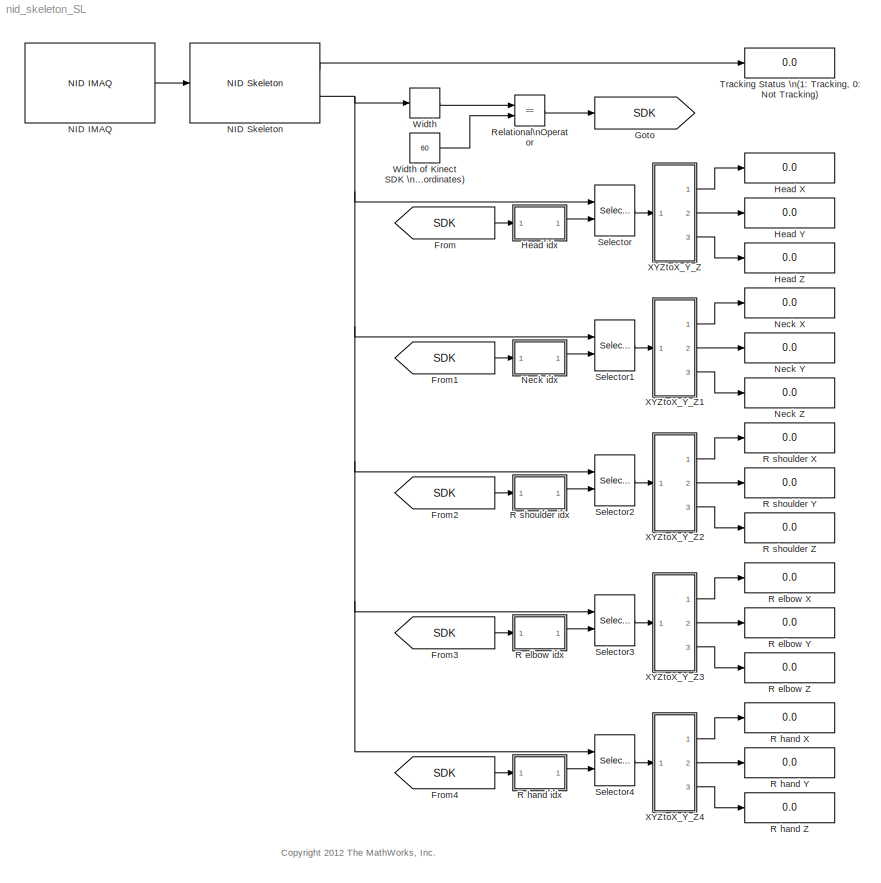
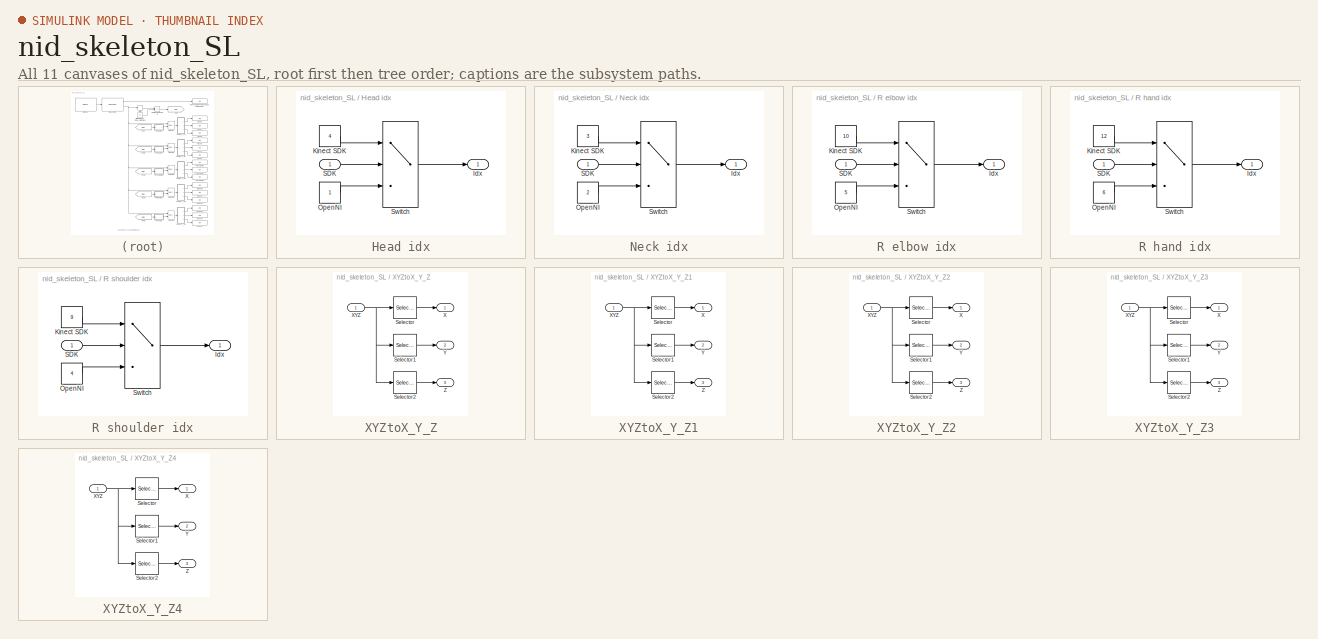
[diagram: thumbnail index - all 11 canvases of the model, root first then tree order]
MODEL nid_skeleton_SL
KIND model
BLOCK [From] From
  GotoTag = SDK
  SID = 130
BLOCK [From] From1
  GotoTag = SDK
  SID = 136
BLOCK [From] From2
  GotoTag = SDK
  SID = 146
BLOCK [From] From3
  GotoTag = SDK
  SID = 156
BLOCK [From] From4
  GotoTag = SDK
  SID = 166
BLOCK [Goto] Goto
  GotoTag = SDK
  SID = 120
BLOCK [Display] Head X
  Decimation = 1
  Ports = [1]
  SID = 133
BLOCK [Display] Head Y
  Decimation = 1
  Ports = [1]
  SID = 195
BLOCK [Display] Head Z
  Decimation = 1
  Ports = [1]
  SID = 196
BLOCK [SubSystem] Head idx
  Ports = [1, 1]
  RequestExecContextInheritance = off
  SID = 126
BLOCK [Outport] Head idx/Idx
  IconDisplay = Port number
  SID = 128
BLOCK [Constant] Head idx/Kinect SDK
  SID = 122
  Value = 4
BLOCK [Constant] Head idx/OpenNI
  SID = 123
BLOCK [Inport] Head idx/SDK
  IconDisplay = Port number
  SID = 127
BLOCK [Switch] Head idx/Switch
  Criteria = u2 ~= 0
  InputSameDT = off
  SID = 121
  SaturateOnIntegerOverflow = off
BLOCK [Reference] NID IMAQ  REF=nid_lib/NID IMAQ
  Ports = [0, 1]
  SID = 84
  SourceBlock = nid_lib/NID IMAQ
  SourceType = NID IMAQ
  angle = 0
  angle_read = off
  imaq_depth = off
  imaq_image = off
  imaq_ir = off
  imaq_motion = off
  imaq_sample_time = 1/30
  imaq_skeleton = on
  mirror_image = off
  near_mode = off
  needPsiPose = off
  res_fps = VGA (640x480): 30 FPS
  view_point = off
BLOCK [Reference] NID Skeleton  REF=nid_lib/NID Skeleton
  Ports = [1, 2]
  SID = 85
  SourceBlock = nid_lib/NID Skeleton
  SourceType = NID Skeleton
  conv_XYZ_RW = on
  num_of_skeleton_tracking = 1
  viewer = off
BLOCK [Display] Neck X
  Decimation = 1
  Ports = [1]
  SID = 197
BLOCK [Display] Neck Y
  Decimation = 1
  Ports = [1]
  SID = 198
BLOCK [Display] Neck Z
  Decimation = 1
  Ports = [1]
  SID = 199
BLOCK [SubSystem] Neck idx
  Ports = [1, 1]
  RequestExecContextInheritance = off
  SID = 137
BLOCK [Outport] Neck idx/Idx
  IconDisplay = Port number
  SID = 142
BLOCK [Constant] Neck idx/Kinect SDK
  SID = 139
  Value = 3
BLOCK [Constant] Neck idx/OpenNI
  SID = 140
  Value = 2
BLOCK [Inport] Neck idx/SDK
  IconDisplay = Port number
  SID = 138
BLOCK [Switch] Neck idx/Switch
  Criteria = u2 ~= 0
  InputSameDT = off
  SID = 141
  SaturateOnIntegerOverflow = off
BLOCK [Display] R elbow X
  Decimation = 1
  Ports = [1]
  SID = 221
BLOCK [Display] R elbow Y
  Decimation = 1
  Ports = [1]
  SID = 219
BLOCK [Display] R elbow Z
  Decimation = 1
  Ports = [1]
  SID = 220
BLOCK [SubSystem] R elbow idx
  Ports = [1, 1]
  RequestExecContextInheritance = off
  SID = 157
BLOCK [Outport] R elbow idx/Idx
  IconDisplay = Port number
  SID = 162
BLOCK [Constant] R elbow idx/Kinect SDK
  SID = 159
  Value = 10
BLOCK [Constant] R elbow idx/OpenNI
  SID = 160
  Value = 5
BLOCK [Inport] R elbow idx/SDK
  IconDisplay = Port number
  SID = 158
BLOCK [Switch] R elbow idx/Switch
  Criteria = u2 ~= 0
  InputSameDT = off
  SID = 161
  SaturateOnIntegerOverflow = off
BLOCK [Display] R hand X
  Decimation = 1
  Ports = [1]
  SID = 230
BLOCK [Display] R hand Y
  Decimation = 1
  Ports = [1]
  SID = 231
BLOCK [Display] R hand Z
  Decimation = 1
  Ports = [1]
  SID = 232
BLOCK [SubSystem] R hand idx
  Ports = [1, 1]
  RequestExecContextInheritance = off
  SID = 167
BLOCK [Outport] R hand idx/Idx
  IconDisplay = Port number
  SID = 172
BLOCK [Constant] R hand idx/Kinect SDK
  SID = 169
  Value = 12
BLOCK [Constant] R hand idx/OpenNI
  SID = 170
  Value = 6
BLOCK [Inport] R hand idx/SDK
  IconDisplay = Port number
  SID = 168
BLOCK [Switch] R hand idx/Switch
  Criteria = u2 ~= 0
  InputSameDT = off
  SID = 171
  SaturateOnIntegerOverflow = off
BLOCK [Display] R shoulder X
  Decimation = 1
  Ports = [1]
  SID = 208
BLOCK [Display] R shoulder Y
  Decimation = 1
  Ports = [1]
  SID = 209
BLOCK [Display] R shoulder Z
  Decimation = 1
  Ports = [1]
  SID = 210
BLOCK [SubSystem] R shoulder idx
  Ports = [1, 1]
  RequestExecContextInheritance = off
  SID = 147
BLOCK [Outport] R shoulder idx/Idx
  IconDisplay = Port number
  SID = 152
BLOCK [Constant] R shoulder idx/Kinect SDK
  SID = 149
  Value = 9
BLOCK [Constant] R shoulder idx/OpenNI
  SID = 150
  Value = 4
BLOCK [Inport] R shoulder idx/SDK
  IconDisplay = Port number
  SID = 148
BLOCK [Switch] R shoulder idx/Switch
  Criteria = u2 ~= 0
  InputSameDT = off
  SID = 151
  SaturateOnIntegerOverflow = off
BLOCK [RelationalOperator] Relational\nOperator
  InputSameDT = off
  Operator = ==
  OutDataTypeStr = boolean
  Ports = [2, 1]
  SID = 119
BLOCK [Selector] Selector
  IndexOptions = Select all,Index vector (port),Select all
  Indices = [1 3],1,1
  InputPortWidth = 3
  NumberOfDimensions = 3
  OutputSizes = 1,1,1
  Ports = [2, 1]
  SID = 129
BLOCK [Selector] Selector1
  IndexOptions = Select all,Index vector (port),Select all
  Indices = [1 3],1,1
  InputPortWidth = 3
  NumberOfDimensions = 3
  OutputSizes = 1,1,1
  Ports = [2, 1]
  SID = 144
BLOCK [Selector] Selector2
  IndexOptions = Select all,Index vector (port),Select all
  Indices = [1 3],1,1
  InputPortWidth = 3
  NumberOfDimensions = 3
  OutputSizes = 1,1,1
  Ports = [2, 1]
  SID = 154
BLOCK [Selector] Selector3
  IndexOptions = Select all,Index vector (port),Select all
  Indices = [1 3],1,1
  InputPortWidth = 3
  NumberOfDimensions = 3
  OutputSizes = 1,1,1
  Ports = [2, 1]
  SID = 164
BLOCK [Selector] Selector4
  IndexOptions = Select all,Index vector (port),Select all
  Indices = [1 3],1,1
  InputPortWidth = 3
  NumberOfDimensions = 3
  OutputSizes = 1,1,1
  Ports = [2, 1]
  SID = 174
BLOCK [Display] Tracking Status \n(1: Tracking, 0: Not Tracking)
  Decimation = 1
  Ports = [1]
  SID = 134
BLOCK [Width] Width
  SID = 117
BLOCK [Constant] Width of Kinect SDK \n(20 joints x 3 coordinates)
  SID = 118
  Value = 60
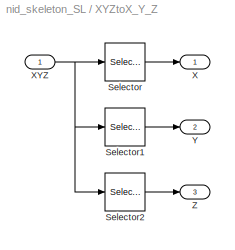
BLOCK [SubSystem] XYZtoX_Y_Z
  Ports = [1, 3]
  RequestExecContextInheritance = off
  SID = 187
BLOCK [Selector] XYZtoX_Y_Z/Selector
  IndexOptions = Index vector (dialog),Index vector (dialog),Index vector (dialog)
  Indices = 1,1,1
  InputPortWidth = 3
  NumberOfDimensions = 3
  OutputSizes = 1,1,1
  Ports = [1, 1]
  SID = 186
BLOCK [Selector] XYZtoX_Y_Z/Selector1
  IndexOptions = Index vector (dialog),Index vector (dialog),Index vector (dialog)
  Indices = 1,1,2
  InputPortWidth = 3
  NumberOfDimensions = 3
  OutputSizes = 1,1,1
  Ports = [1, 1]
  SID = 191
BLOCK [Selector] XYZtoX_Y_Z/Selector2
  IndexOptions = Index vector (dialog),Index vector (dialog),Index vector (dialog)
  Indices = 1,1,3
  InputPortWidth = 3
  NumberOfDimensions = 3
  OutputSizes = 1,1,1
  Ports = [1, 1]
  SID = 193
BLOCK [Outport] XYZtoX_Y_Z/X
  IconDisplay = Port number
  SID = 189
BLOCK [Inport] XYZtoX_Y_Z/XYZ
  IconDisplay = Port number
  SID = 188
BLOCK [Outport] XYZtoX_Y_Z/Y
  IconDisplay = Port number
  Port = 2
  SID = 192
BLOCK [Outport] XYZtoX_Y_Z/Z
  IconDisplay = Port number
  Port = 3
  SID = 194
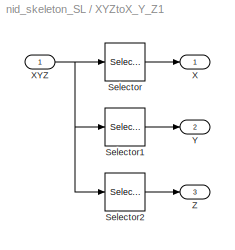
BLOCK [SubSystem] XYZtoX_Y_Z1
  Ports = [1, 3]
  RequestExecContextInheritance = off
  SID = 200
BLOCK [Selector] XYZtoX_Y_Z1/Selector
  IndexOptions = Index vector (dialog),Index vector (dialog),Index vector (dialog)
  Indices = 1,1,1
  InputPortWidth = 3
  NumberOfDimensions = 3
  OutputSizes = 1,1,1
  Ports = [1, 1]
  SID = 202
BLOCK [Selector] XYZtoX_Y_Z1/Selector1
  IndexOptions = Index vector (dialog),Index vector (dialog),Index vector (dialog)
  Indices = 1,1,2
  InputPortWidth = 3
  NumberOfDimensions = 3
  OutputSizes = 1,1,1
  Ports = [1, 1]
  SID = 203
BLOCK [Selector] XYZtoX_Y_Z1/Selector2
  IndexOptions = Index vector (dialog),Index vector (dialog),Index vector (dialog)
  Indices = 1,1,3
  InputPortWidth = 3
  NumberOfDimensions = 3
  OutputSizes = 1,1,1
  Ports = [1, 1]
  SID = 204
BLOCK [Outport] XYZtoX_Y_Z1/X
  IconDisplay = Port number
  SID = 205
BLOCK [Inport] XYZtoX_Y_Z1/XYZ
  IconDisplay = Port number
  SID = 201
BLOCK [Outport] XYZtoX_Y_Z1/Y
  IconDisplay = Port number
  Port = 2
  SID = 206
BLOCK [Outport] XYZtoX_Y_Z1/Z
  IconDisplay = Port number
  Port = 3
  SID = 207
BLOCK [SubSystem] XYZtoX_Y_Z2
  Ports = [1, 3]
  RequestExecContextInheritance = off
  SID = 211
BLOCK [Selector] XYZtoX_Y_Z2/Selector
  IndexOptions = Index vector (dialog),Index vector (dialog),Index vector (dialog)
  Indices = 1,1,1
  InputPortWidth = 3
  NumberOfDimensions = 3
  OutputSizes = 1,1,1
  Ports = [1, 1]
  SID = 213
BLOCK [Selector] XYZtoX_Y_Z2/Selector1
  IndexOptions = Index vector (dialog),Index vector (dialog),Index vector (dialog)
  Indices = 1,1,2
  InputPortWidth = 3
  NumberOfDimensions = 3
  OutputSizes = 1,1,1
  Ports = [1, 1]
  SID = 214
BLOCK [Selector] XYZtoX_Y_Z2/Selector2
  IndexOptions = Index vector (dialog),Index vector (dialog),Index vector (dialog)
  Indices = 1,1,3
  InputPortWidth = 3
  NumberOfDimensions = 3
  OutputSizes = 1,1,1
  Ports = [1, 1]
  SID = 215
BLOCK [Outport] XYZtoX_Y_Z2/X
  IconDisplay = Port number
  SID = 216
BLOCK [Inport] XYZtoX_Y_Z2/XYZ
  IconDisplay = Port number
  SID = 212
BLOCK [Outport] XYZtoX_Y_Z2/Y
  IconDisplay = Port number
  Port = 2
  SID = 217
BLOCK [Outport] XYZtoX_Y_Z2/Z
  IconDisplay = Port number
  Port = 3
  SID = 218
BLOCK [SubSystem] XYZtoX_Y_Z3
  Ports = [1, 3]
  RequestExecContextInheritance = off
  SID = 222
BLOCK [Selector] XYZtoX_Y_Z3/Selector
  IndexOptions = Index vector (dialog),Index vector (dialog),Index vector (dialog)
  Indices = 1,1,1
  InputPortWidth = 3
  NumberOfDimensions = 3
  OutputSizes = 1,1,1
  Ports = [1, 1]
  SID = 224
BLOCK [Selector] XYZtoX_Y_Z3/Selector1
  IndexOptions = Index vector (dialog),Index vector (dialog),Index vector (dialog)
  Indices = 1,1,2
  InputPortWidth = 3
  NumberOfDimensions = 3
  OutputSizes = 1,1,1
  Ports = [1, 1]
  SID = 225
BLOCK [Selector] XYZtoX_Y_Z3/Selector2
  IndexOptions = Index vector (dialog),Index vector (dialog),Index vector (dialog)
  Indices = 1,1,3
  InputPortWidth = 3
  NumberOfDimensions = 3
  OutputSizes = 1,1,1
  Ports = [1, 1]
  SID = 226
BLOCK [Outport] XYZtoX_Y_Z3/X
  IconDisplay = Port number
  SID = 227
BLOCK [Inport] XYZtoX_Y_Z3/XYZ
  IconDisplay = Port number
  SID = 223
BLOCK [Outport] XYZtoX_Y_Z3/Y
  IconDisplay = Port number
  Port = 2
  SID = 228
BLOCK [Outport] XYZtoX_Y_Z3/Z
  IconDisplay = Port number
  Port = 3
  SID = 229
BLOCK [SubSystem] XYZtoX_Y_Z4
  Ports = [1, 3]
  RequestExecContextInheritance = off
  SID = 233
BLOCK [Selector] XYZtoX_Y_Z4/Selector
  IndexOptions = Index vector (dialog),Index vector (dialog),Index vector (dialog)
  Indices = 1,1,1
  InputPortWidth = 3
  NumberOfDimensions = 3
  OutputSizes = 1,1,1
  Ports = [1, 1]
  SID = 235
BLOCK [Selector] XYZtoX_Y_Z4/Selector1
  IndexOptions = Index vector (dialog),Index vector (dialog),Index vector (dialog)
  Indices = 1,1,2
  InputPortWidth = 3
  NumberOfDimensions = 3
  OutputSizes = 1,1,1
  Ports = [1, 1]
  SID = 236
BLOCK [Selector] XYZtoX_Y_Z4/Selector2
  IndexOptions = Index vector (dialog),Index vector (dialog),Index vector (dialog)
  Indices = 1,1,3
  InputPortWidth = 3
  NumberOfDimensions = 3
  OutputSizes = 1,1,1
  Ports = [1, 1]
  SID = 237
BLOCK [Outport] XYZtoX_Y_Z4/X
  IconDisplay = Port number
  SID = 238
BLOCK [Inport] XYZtoX_Y_Z4/XYZ
  IconDisplay = Port number
  SID = 234
BLOCK [Outport] XYZtoX_Y_Z4/Y
  IconDisplay = Port number
  Port = 2
  SID = 239
BLOCK [Outport] XYZtoX_Y_Z4/Z
  IconDisplay = Port number
  Port = 3
  SID = 240
ANNOTATION (root): <copyright redacted>
LINE From1:1 -> Neck idx:1
LINE From2:1 -> R shoulder idx:1
LINE From3:1 -> R elbow idx:1
LINE From4:1 -> R hand idx:1
LINE From:1 -> Head idx:1
LINE Head idx/Kinect SDK:1 -> Head idx/Switch:1
LINE Head idx/OpenNI:1 -> Head idx/Switch:3
LINE Head idx/SDK:1 -> Head idx/Switch:2
LINE Head idx/Switch:1 -> Head idx/Idx:1
LINE Head idx:1 -> Selector:2
LINE NID IMAQ:1 -> NID Skeleton:1
LINE NID Skeleton:1 -> Tracking Status \n(1: Tracking, 0: Not Tracking):1
NET NID Skeleton:2 -> Selector1:1, Selector2:1, Selector3:1, Selector4:1, Selector:1, Width:1
LINE Neck idx/Kinect SDK:1 -> Neck idx/Switch:1
LINE Neck idx/OpenNI:1 -> Neck idx/Switch:3
LINE Neck idx/SDK:1 -> Neck idx/Switch:2
LINE Neck idx/Switch:1 -> Neck idx/Idx:1
LINE Neck idx:1 -> Selector1:2
LINE R elbow idx/Kinect SDK:1 -> R elbow idx/Switch:1
LINE R elbow idx/OpenNI:1 -> R elbow idx/Switch:3
LINE R elbow idx/SDK:1 -> R elbow idx/Switch:2
LINE R elbow idx/Switch:1 -> R elbow idx/Idx:1
LINE R elbow idx:1 -> Selector3:2
LINE R hand idx/Kinect SDK:1 -> R hand idx/Switch:1
LINE R hand idx/OpenNI:1 -> R hand idx/Switch:3
LINE R hand idx/SDK:1 -> R hand idx/Switch:2
LINE R hand idx/Switch:1 -> R hand idx/Idx:1
LINE R hand idx:1 -> Selector4:2
LINE R shoulder idx/Kinect SDK:1 -> R shoulder idx/Switch:1
LINE R shoulder idx/OpenNI:1 -> R shoulder idx/Switch:3
LINE R shoulder idx/SDK:1 -> R shoulder idx/Switch:2
LINE R shoulder idx/Switch:1 -> R shoulder idx/Idx:1
LINE R shoulder idx:1 -> Selector2:2
LINE Relational\nOperator:1 -> Goto:1
LINE Selector1:1 -> XYZtoX_Y_Z1:1
LINE Selector2:1 -> XYZtoX_Y_Z2:1
LINE Selector3:1 -> XYZtoX_Y_Z3:1
LINE Selector4:1 -> XYZtoX_Y_Z4:1
LINE Selector:1 -> XYZtoX_Y_Z:1
LINE Width of Kinect SDK \n(20 joints x 3 coordinates):1 -> Relational\nOperator:2
LINE Width:1 -> Relational\nOperator:1
LINE XYZtoX_Y_Z/Selector1:1 -> XYZtoX_Y_Z/Y:1
LINE XYZtoX_Y_Z/Selector2:1 -> XYZtoX_Y_Z/Z:1
LINE XYZtoX_Y_Z/Selector:1 -> XYZtoX_Y_Z/X:1
NET XYZtoX_Y_Z/XYZ:1 -> XYZtoX_Y_Z/Selector1:1, XYZtoX_Y_Z/Selector2:1, XYZtoX_Y_Z/Selector:1
LINE XYZtoX_Y_Z1/Selector1:1 -> XYZtoX_Y_Z1/Y:1
LINE XYZtoX_Y_Z1/Selector2:1 -> XYZtoX_Y_Z1/Z:1
LINE XYZtoX_Y_Z1/Selector:1 -> XYZtoX_Y_Z1/X:1
NET XYZtoX_Y_Z1/XYZ:1 -> XYZtoX_Y_Z1/Selector1:1, XYZtoX_Y_Z1/Selector2:1, XYZtoX_Y_Z1/Selector:1
LINE XYZtoX_Y_Z1:1 -> Neck X:1
LINE XYZtoX_Y_Z1:2 -> Neck Y:1
LINE XYZtoX_Y_Z1:3 -> Neck Z:1
LINE XYZtoX_Y_Z2/Selector1:1 -> XYZtoX_Y_Z2/Y:1
LINE XYZtoX_Y_Z2/Selector2:1 -> XYZtoX_Y_Z2/Z:1
LINE XYZtoX_Y_Z2/Selector:1 -> XYZtoX_Y_Z2/X:1
NET XYZtoX_Y_Z2/XYZ:1 -> XYZtoX_Y_Z2/Selector1:1, XYZtoX_Y_Z2/Selector2:1, XYZtoX_Y_Z2/Selector:1
LINE XYZtoX_Y_Z2:1 -> R shoulder X:1
LINE XYZtoX_Y_Z2:2 -> R shoulder Y:1
LINE XYZtoX_Y_Z2:3 -> R shoulder Z:1
LINE XYZtoX_Y_Z3/Selector1:1 -> XYZtoX_Y_Z3/Y:1
LINE XYZtoX_Y_Z3/Selector2:1 -> XYZtoX_Y_Z3/Z:1
LINE XYZtoX_Y_Z3/Selector:1 -> XYZtoX_Y_Z3/X:1
NET XYZtoX_Y_Z3/XYZ:1 -> XYZtoX_Y_Z3/Selector1:1, XYZtoX_Y_Z3/Selector2:1, XYZtoX_Y_Z3/Selector:1
LINE XYZtoX_Y_Z3:1 -> R elbow X:1
LINE XYZtoX_Y_Z3:2 -> R elbow Y:1
LINE XYZtoX_Y_Z3:3 -> R elbow Z:1
LINE XYZtoX_Y_Z4/Selector1:1 -> XYZtoX_Y_Z4/Y:1
LINE XYZtoX_Y_Z4/Selector2:1 -> XYZtoX_Y_Z4/Z:1
LINE XYZtoX_Y_Z4/Selector:1 -> XYZtoX_Y_Z4/X:1
NET XYZtoX_Y_Z4/XYZ:1 -> XYZtoX_Y_Z4/Selector1:1, XYZtoX_Y_Z4/Selector2:1, XYZtoX_Y_Z4/Selector:1
LINE XYZtoX_Y_Z4:1 -> R hand X:1
LINE XYZtoX_Y_Z4:2 -> R hand Y:1
LINE XYZtoX_Y_Z4:3 -> R hand Z:1
LINE XYZtoX_Y_Z:1 -> Head X:1
LINE XYZtoX_Y_Z:2 -> Head Y:1
LINE XYZtoX_Y_Z:3 -> Head Z:1
note: NET lines group one-source signal fan-out (src -> all destinations, sorted); 1:1 wires keep LINE
